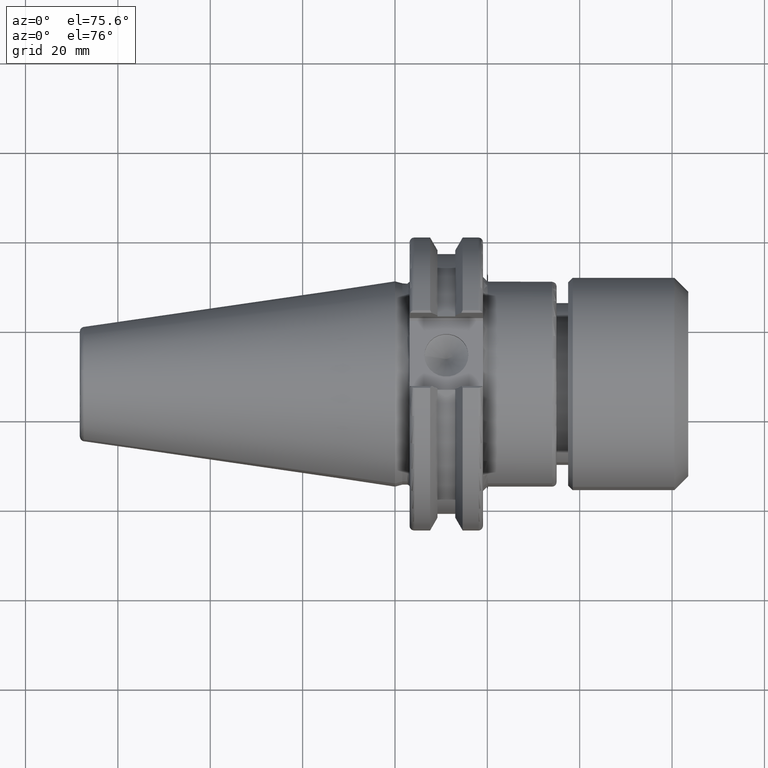
[diagram: clean part render]
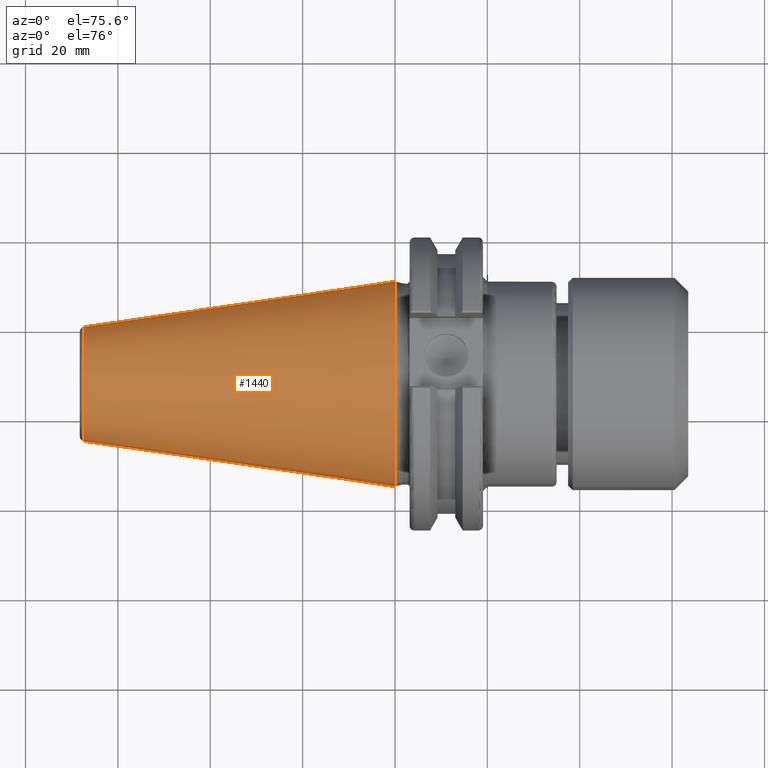
[diagram: same view with one face highlighted and labeled with its STEP entity id]
A machine part, auxiliary view. The second image highlights one B-rep face of the part: STEP entity #1440.
In plain terms, the highlighted conical surface has half-angle 8.297 deg.
Its self-contained STEP definition (entity closure, byte-faithful):
#267=CONICAL_SURFACE('',#1665,17.2484375,0.144812498238939);
#394=LINE('',#2567,#472);
#472=VECTOR('',#1973,17.2484375);
#549=FACE_OUTER_BOUND('',#629,.T.);
#629=EDGE_LOOP('',(#1226,#1227,#1228,#1229,#1230));
#709=CIRCLE('',#1659,12.3966635780937);
#710=CIRCLE('',#1660,12.3966635780937);
#714=CIRCLE('',#1666,22.225);
#831=VERTEX_POINT('',#2554);
#832=VERTEX_POINT('',#2555);
#835=VERTEX_POINT('',#2565);
#978=EDGE_CURVE('',#831,#832,#709,.T.);
#979=EDGE_CURVE('',#832,#831,#710,.T.);
#983=EDGE_CURVE('',#835,#835,#714,.T.);
#984=EDGE_CURVE('',#835,#832,#394,.T.);
#1226=ORIENTED_EDGE('',*,*,#983,.F.);
#1227=ORIENTED_EDGE('',*,*,#984,.T.);
#1228=ORIENTED_EDGE('',*,*,#978,.F.);
#1229=ORIENTED_EDGE('',*,*,#979,.F.);
#1230=ORIENTED_EDGE('',*,*,#984,.F.);
#1440=ADVANCED_FACE('',(#549),#267,.T.);
#1659=AXIS2_PLACEMENT_3D('',#2556,#1957,#1958);
#1660=AXIS2_PLACEMENT_3D('',#2557,#1959,#1960);
#1665=AXIS2_PLACEMENT_3D('',#2564,#1969,#1970);
#1666=AXIS2_PLACEMENT_3D('',#2566,#1971,#1972);
#1957=DIRECTION('center_axis',(-1.,0.,0.));
#1958=DIRECTION('ref_axis',(0.,-1.,3.06161699786838E-17));
#1959=DIRECTION('center_axis',(-1.,0.,0.));
#1960=DIRECTION('ref_axis',(0.,-1.,3.06161699786838E-17));
#1969=DIRECTION('center_axis',(1.,0.,0.));
#1970=DIRECTION('ref_axis',(0.,1.,0.));
#1971=DIRECTION('center_axis',(1.,0.,0.));
#1972=DIRECTION('ref_axis',(0.,0.,-1.));
#1973=DIRECTION('',(-0.989532981063282,0.144306893071729,1.76724974695192E-17));
#2554=CARTESIAN_POINT('',(-67.3943068930717,-1.5181534371019E-15,12.3966635780937));
#2555=CARTESIAN_POINT('',(-67.3943068930718,-12.3966635780937,-1.5181534371019E-15));
#2556=CARTESIAN_POINT('Origin',(-67.3943068930717,0.,-1.89769179637738E-15));
#2557=CARTESIAN_POINT('Origin',(-67.3943068930717,0.,-1.89769179637738E-15));
#2564=CARTESIAN_POINT('Origin',(-34.125,0.,0.));
#2565=CARTESIAN_POINT('',(0.,-22.225,-2.72177751110499E-15));
#2566=CARTESIAN_POINT('Origin',(0.,0.,0.));
#2567=CARTESIAN_POINT('',(-34.125,-17.2484375,-2.11232437746682E-15));